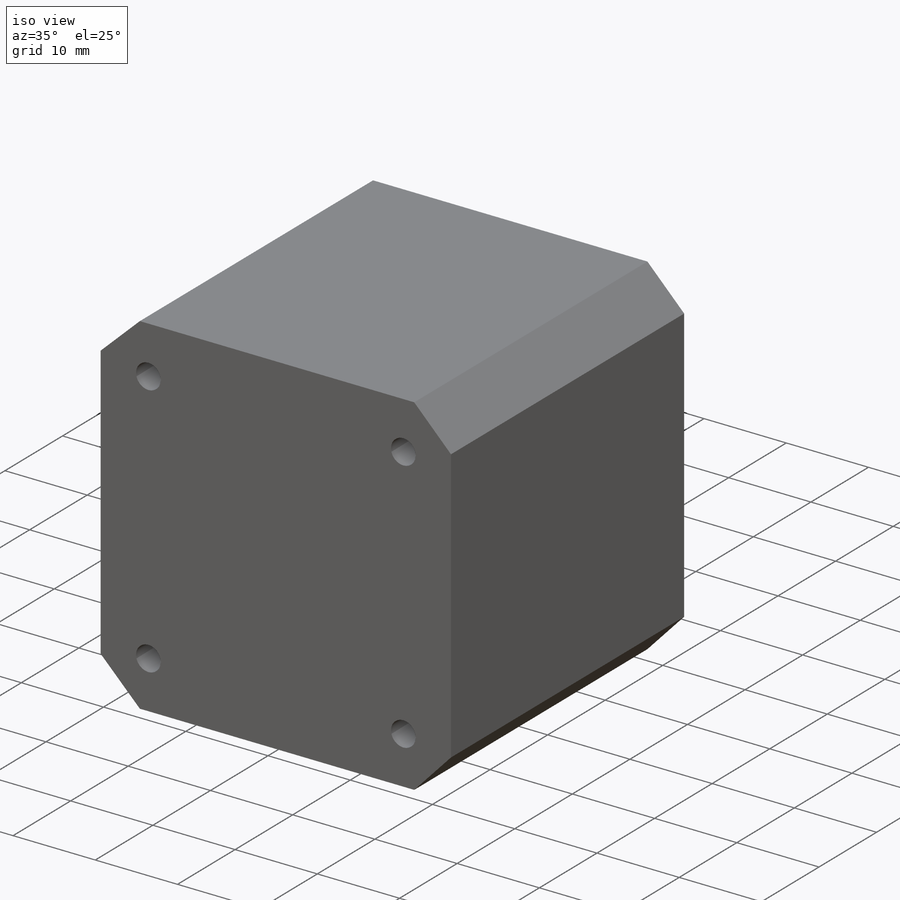
[diagram: iso view]
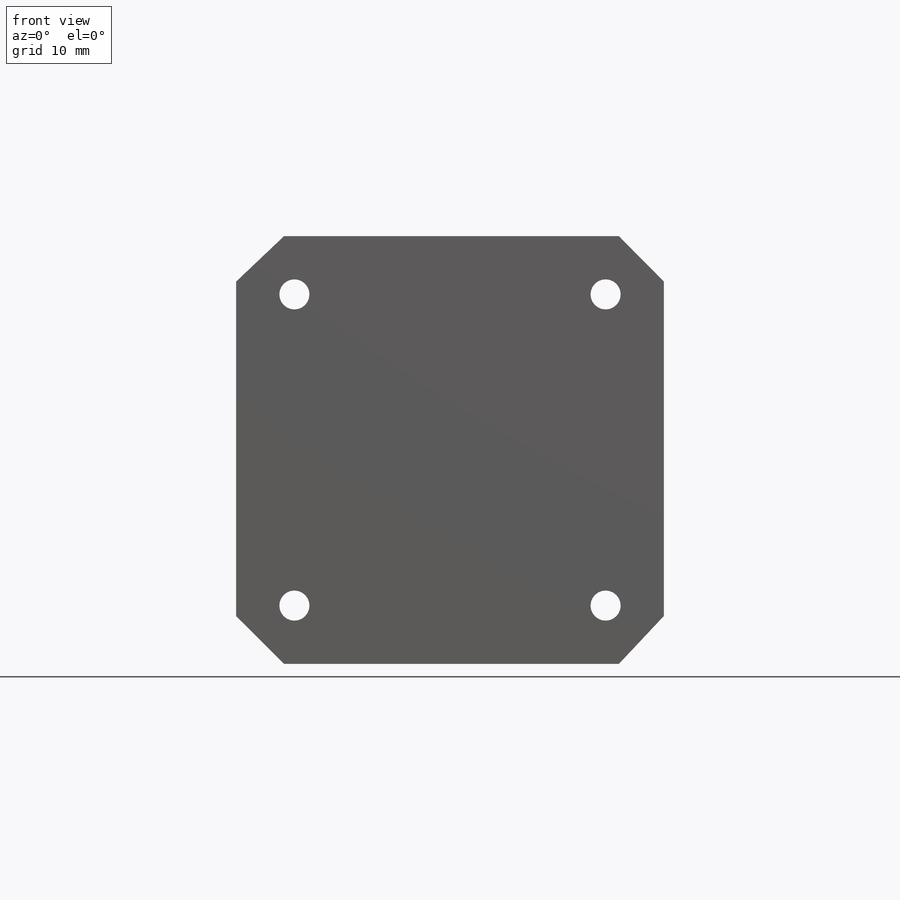
[diagram: front view]
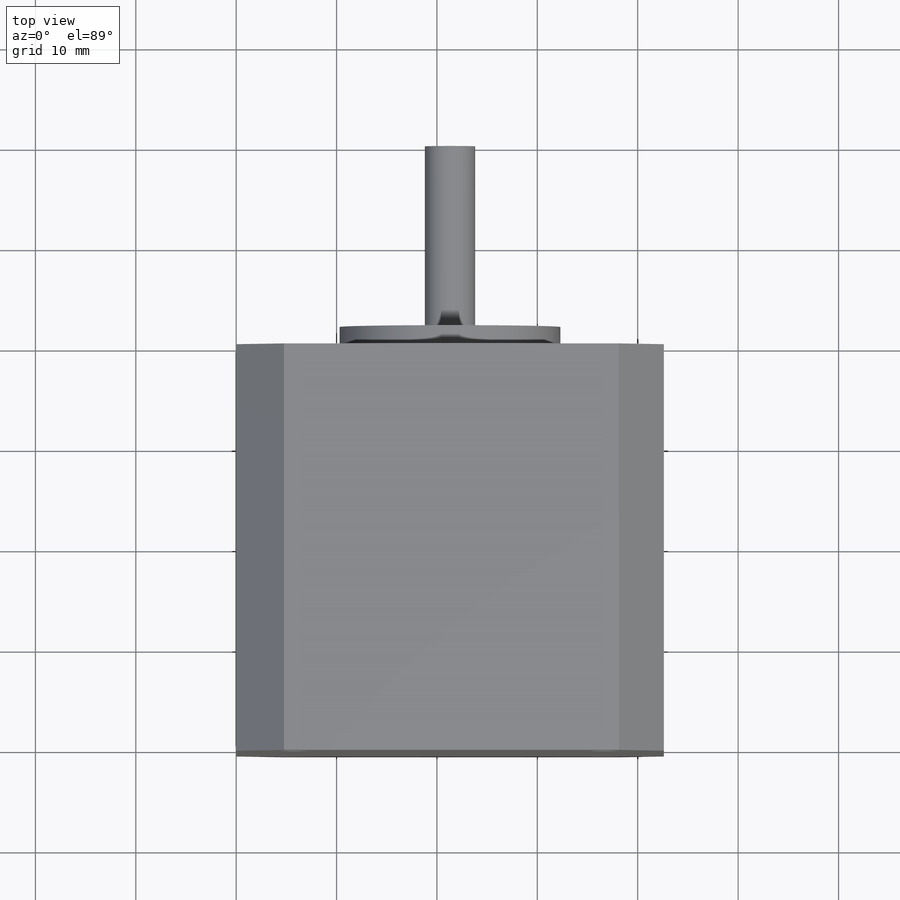
[diagram: top view]
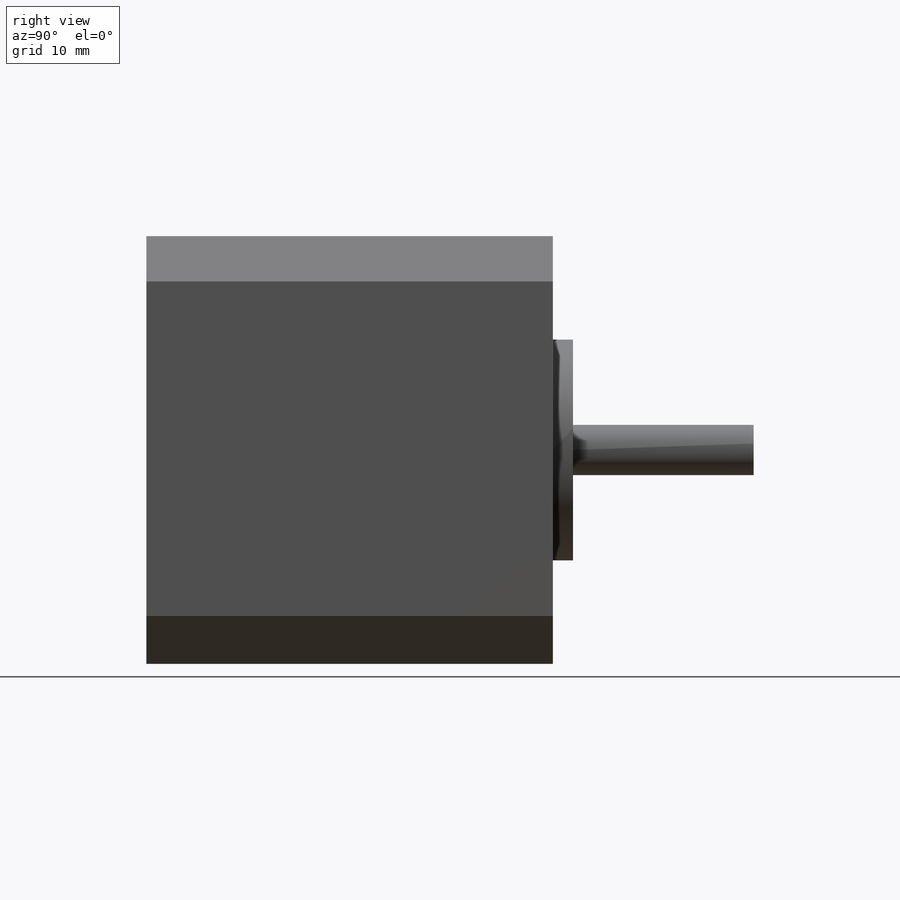
[diagram: right view]
SOLIDWORKS PART (.sldprt)
format: sldprt  version: not decoded by parser v0  size: 205,824 bytes
history: native  units: mm
features: sketch x4, extrude x3, material x1, cut_extrude x1 (+16 scaffold rows collapsed)
feature tree (25):
  scaffold x16  (default folders/planes/origin — collapsed)
  material  "6063-T4"
  sketch  "Sketch1"  dims[D9=~1.566747mm D1=42.6mm D2=42.6mm D3=21.3mm D4=21.3mm D5=15.5mm D6=15.5mm D7=31.0mm D8=31.0mm]
  extrude  "Extrude1"  Depth=40.5mm
  sketch  "Sketch2"
  cut_extrude  "Extrude2"  Depth=40.5mm
  sketch  "Sketch5"  dims[D1=~7.348327mm]
  extrude  "Extrude3"  Depth=2mm
  sketch  "Sketch6"  dims[D1=~1.940443mm]
  extrude  "Extrude4"  Depth=18mm
decode coverage: 7 of 8 modeling features carry decoded parameters
note: ~ marks probable driven/reference dimensions
note: suppression state not decoded; provenance and decode notes live in map.json
